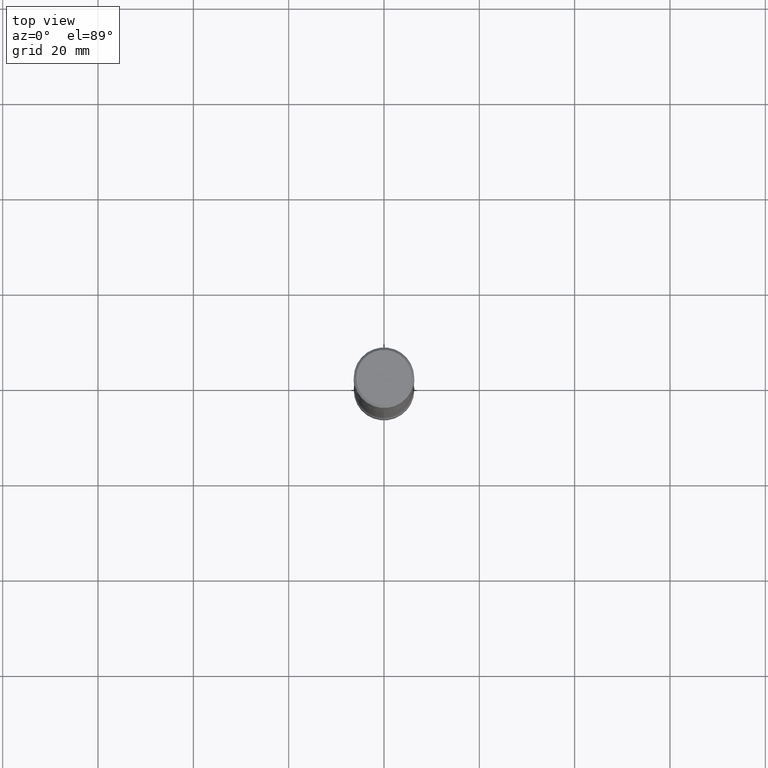
[diagram: clean part render]
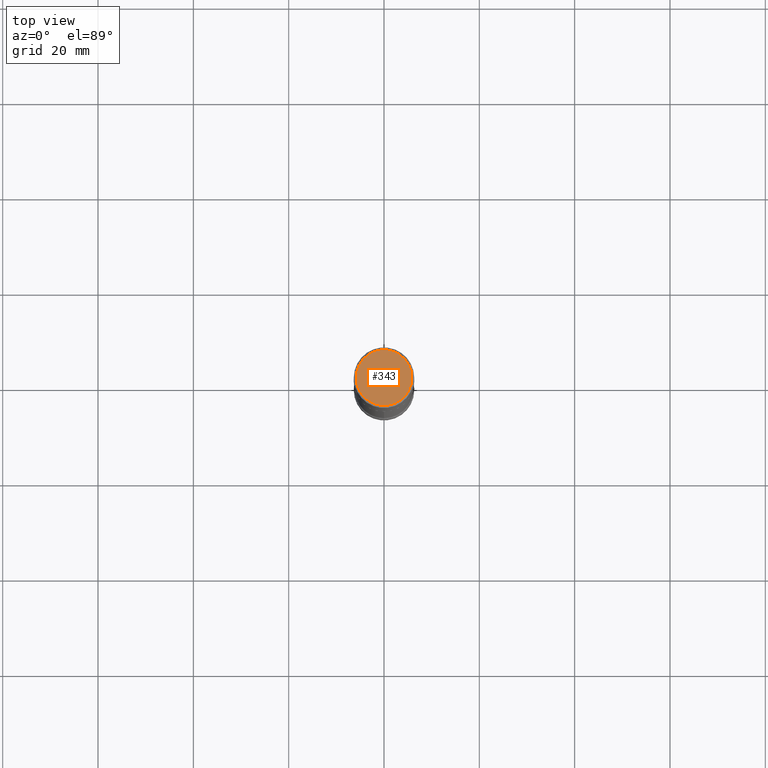
[diagram: same view with one face highlighted and labeled with its STEP entity id]
A machine part, top view. The second image highlights one B-rep face of the part: STEP entity #343.
In plain terms, the highlighted planar face has unit normal (0, -0, -1).
Its self-contained STEP definition (entity closure, byte-faithful):
#11 = VERTEX_POINT ( 'NONE', #97 ) ;
#29 = DIRECTION ( 'NONE',  ( 1.000000000000000000, -6.982962677686265922E-15, 4.876225828469306079E-29 ) ) ;
#40 = CIRCLE ( 'NONE', #123, 0.2300000000000001210 ) ;
#46 = PLANE ( 'NONE',  #350 ) ;
#77 = EDGE_LOOP ( 'NONE', ( #216, #524 ) ) ;
#97 = CARTESIAN_POINT ( 'NONE',  ( 0.2300000000000001210, -1.681434332853599997E-15, 4.268512490111905999E-18 ) ) ;
#117 = DIRECTION ( 'NONE',  ( 1.000000000000000000, -6.982962677686265922E-15, 4.876225828469306079E-29 ) ) ;
#123 = AXIS2_PLACEMENT_3D ( 'NONE', #513, #183, #29 ) ;
#136 = CIRCLE ( 'NONE', #217, 0.2300000000000001210 ) ;
#152 = EDGE_CURVE ( 'NONE', #11, #264, #40, .T. ) ;
#183 = DIRECTION ( 'NONE',  ( -2.445468806185136597E-29, 3.491481338843145583E-15, 1.000000000000000000 ) ) ;
#216 = ORIENTED_EDGE ( 'NONE', *, *, #370, .T. ) ;
#217 = AXIS2_PLACEMENT_3D ( 'NONE', #509, #458, #117 ) ;
#264 = VERTEX_POINT ( 'NONE', #338 ) ;
#305 = DIRECTION ( 'NONE',  ( 2.438088387897960049E-29, -3.491481338843145188E-15, -1.000000000000000000 ) ) ;
#338 = CARTESIAN_POINT ( 'NONE',  ( -0.2300000000000001210, 1.640996229256273111E-15, 4.268512490089056766E-18 ) ) ;
#339 = DIRECTION ( 'NONE',  ( -1.000000000000000000, 6.982962677686265922E-15, -4.876176775795935793E-29 ) ) ;
#343 = ADVANCED_FACE ( 'NONE', ( #344 ), #46, .F. ) ;
#344 = FACE_OUTER_BOUND ( 'NONE', #77, .T. ) ;
#348 = CARTESIAN_POINT ( 'NONE',  ( 1.606081415867842053E-15, 0.2300000000000001210, -8.009064516888736730E-16 ) ) ;
#350 = AXIS2_PLACEMENT_3D ( 'NONE', #348, #305, #339 ) ;
#370 = EDGE_CURVE ( 'NONE', #264, #11, #136, .T. ) ;
#458 = DIRECTION ( 'NONE',  ( -2.445468806185136597E-29, 3.491481338843145583E-15, 1.000000000000000000 ) ) ;
#509 = CARTESIAN_POINT ( 'NONE',  ( -1.043851414335219820E-46, 1.490343170380447200E-32, 4.268512490100411279E-18 ) ) ;
#513 = CARTESIAN_POINT ( 'NONE',  ( -1.043851414335219820E-46, 1.490343170380447200E-32, 4.268512490100411279E-18 ) ) ;
#524 = ORIENTED_EDGE ( 'NONE', *, *, #152, .T. ) ;